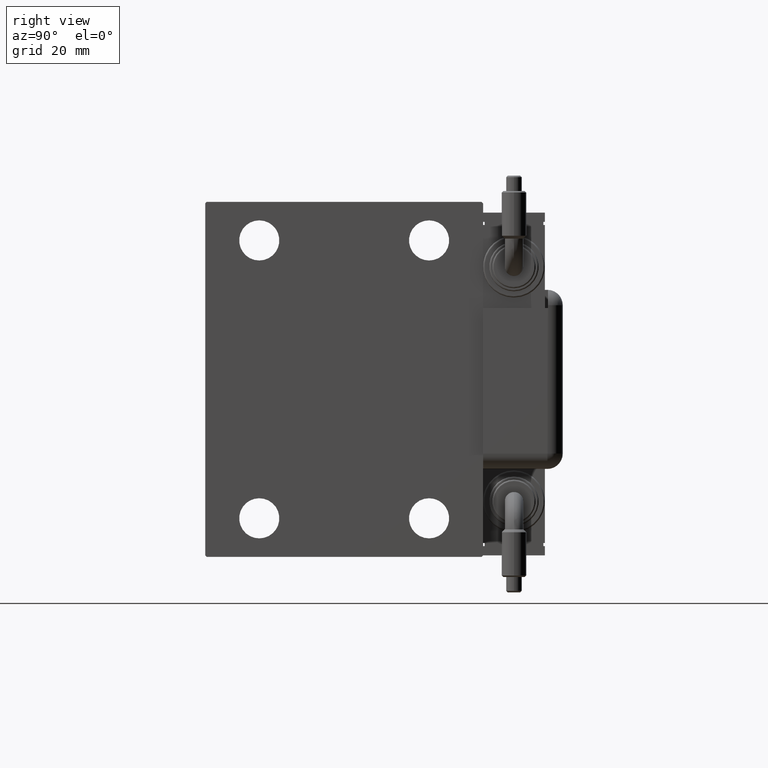
[diagram: clean part render]
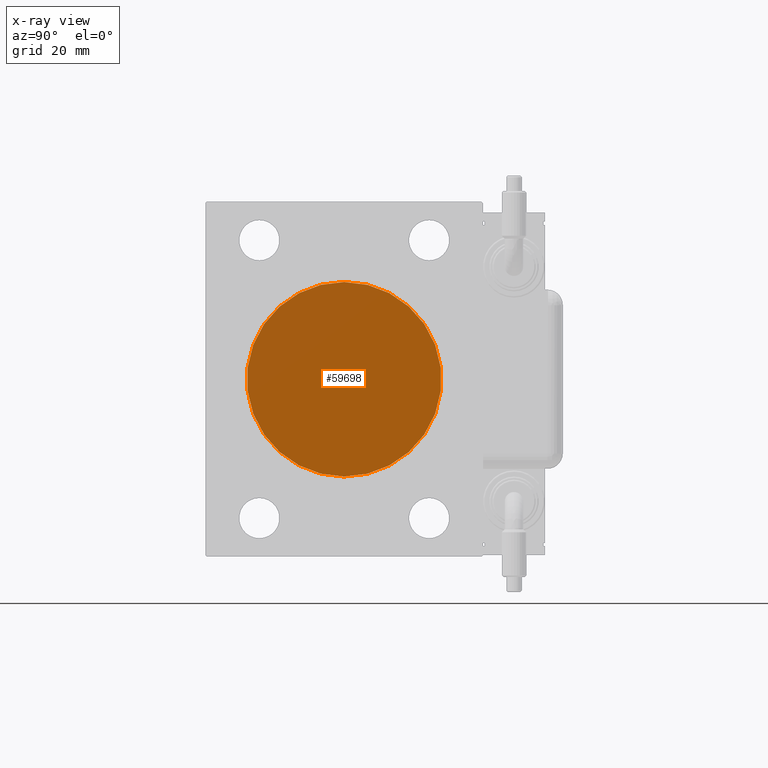
[diagram: x-ray — body ghosted, one internal face saturated and labeled with its STEP entity id]
A machine part, right view, then the same camera in x-ray: the body is ghosted and one INTERNAL B-rep face — a face not visible from any outside direction — is saturated and labeled: STEP entity #59698.
In plain terms, the highlighted planar face has unit normal (-1, 0, 0).
Its self-contained STEP definition (entity closure, byte-faithful):
#4956 = AXIS2_PLACEMENT_3D ( 'NONE', #36936, #9629, #56160 ) ;
#5624 = CARTESIAN_POINT ( 'NONE',  ( 51.00000000000000000, 3.857637417314162689E-15, -31.50000000000000000 ) ) ;
#6375 = ORIENTED_EDGE ( 'NONE', *, *, #38972, .T. ) ;
#9629 = DIRECTION ( 'NONE',  ( -1.000000000000000000, 0.000000000000000000, 0.000000000000000000 ) ) ;
#16013 = CARTESIAN_POINT ( 'NONE',  ( 51.00000000000000000, 0.000000000000000000, 0.000000000000000000 ) ) ;
#18931 = AXIS2_PLACEMENT_3D ( 'NONE', #42336, #52889, #47611 ) ;
#19748 = EDGE_LOOP ( 'NONE', ( #6375, #36630 ) ) ;
#23405 = PLANE ( 'NONE',  #18931 ) ;
#25189 = CIRCLE ( 'NONE', #28150, 31.50000000000000000 ) ;
#27050 = VERTEX_POINT ( 'NONE', #39539 ) ;
#28150 = AXIS2_PLACEMENT_3D ( 'NONE', #16013, #55094, #29979 ) ;
#29979 = DIRECTION ( 'NONE',  ( 0.000000000000000000, 0.000000000000000000, 1.000000000000000000 ) ) ;
#33939 = FACE_OUTER_BOUND ( 'NONE', #19748, .T. ) ;
#34860 = VERTEX_POINT ( 'NONE', #5624 ) ;
#36630 = ORIENTED_EDGE ( 'NONE', *, *, #57737, .T. ) ;
#36936 = CARTESIAN_POINT ( 'NONE',  ( 51.00000000000000000, 0.000000000000000000, 0.000000000000000000 ) ) ;
#38972 = EDGE_CURVE ( 'NONE', #27050, #34860, #25189, .T. ) ;
#39539 = CARTESIAN_POINT ( 'NONE',  ( 51.00000000000000000, 0.000000000000000000, 31.50000000000000000 ) ) ;
#42336 = CARTESIAN_POINT ( 'NONE',  ( 51.00000000000000000, 0.000000000000000000, 0.000000000000000000 ) ) ;
#47611 = DIRECTION ( 'NONE',  ( 0.000000000000000000, 0.000000000000000000, 1.000000000000000000 ) ) ;
#52889 = DIRECTION ( 'NONE',  ( -1.000000000000000000, 0.000000000000000000, 0.000000000000000000 ) ) ;
#55094 = DIRECTION ( 'NONE',  ( -1.000000000000000000, 0.000000000000000000, 0.000000000000000000 ) ) ;
#56160 = DIRECTION ( 'NONE',  ( 0.000000000000000000, 0.000000000000000000, 1.000000000000000000 ) ) ;
#56484 = CIRCLE ( 'NONE', #4956, 31.50000000000000000 ) ;
#57737 = EDGE_CURVE ( 'NONE', #34860, #27050, #56484, .T. ) ;
#59698 = ADVANCED_FACE ( 'NONE', ( #33939 ), #23405, .T. ) ;